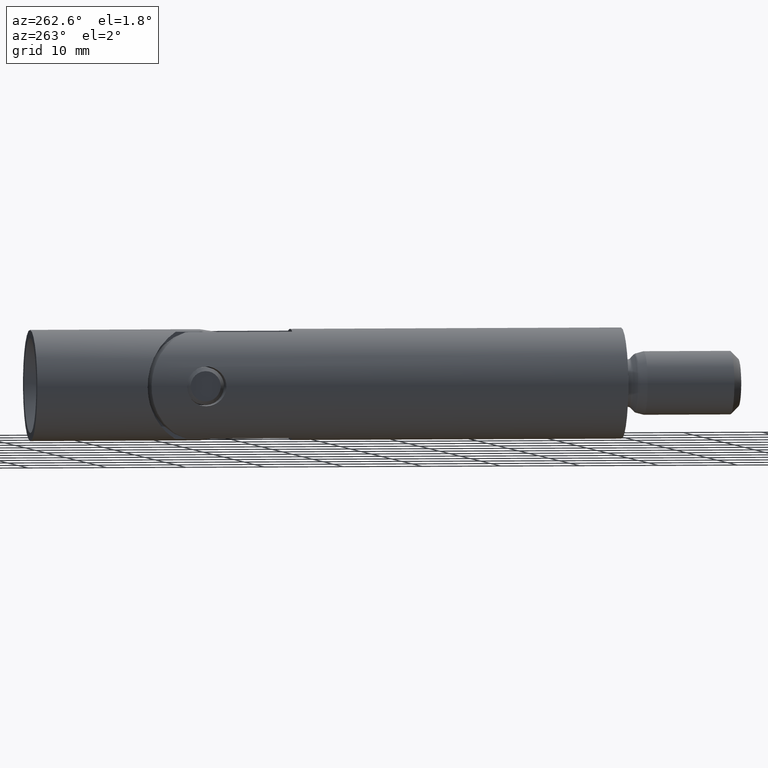
[diagram: clean part render]
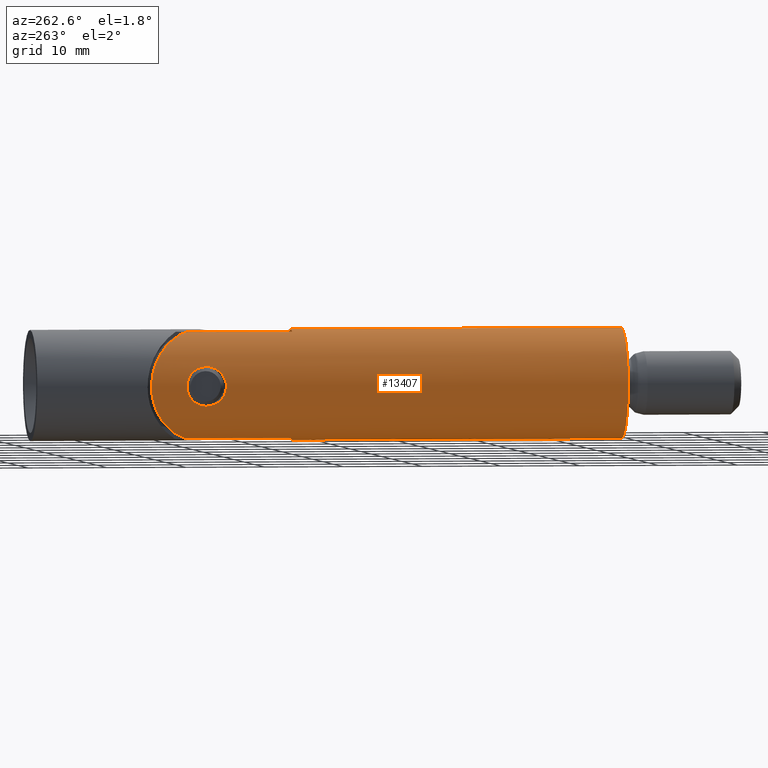
[diagram: same view with one face highlighted and labeled with its STEP entity id]
A machine part, auxiliary view. The second image highlights one B-rep face of the part: STEP entity #13407.
In plain terms, the highlighted cylindrical surface (partial cylindrical patch) has radius 7 mm, axis along (-0, -1, -0).
Its self-contained STEP definition (entity closure, byte-faithful):
#37 = CARTESIAN_POINT ( 'NONE',  ( -6.999981549145927900, 51.00005166239355200, 0.1674526206206270500 ) ) ;
#333 = CARTESIAN_POINT ( 'NONE',  ( -6.999996387244858700, 55.99998988428559000, 0.1642523234070799600 ) ) ;
#385 = FACE_OUTER_BOUND ( 'NONE', #16804, .T. ) ;
#413 = ORIENTED_EDGE ( 'NONE', *, *, #15931, .F. ) ;
#550 = CARTESIAN_POINT ( 'NONE',  ( 0.0000000000000000000, 0.0000000000000000000, -6.999999999999990200 ) ) ;
#810 = ORIENTED_EDGE ( 'NONE', *, *, #13696, .F. ) ;
#838 = DIRECTION ( 'NONE',  ( -0.0000000000000000000, 1.000000000000000000, -0.0000000000000000000 ) ) ;
#939 = DIRECTION ( 'NONE',  ( 0.0000000000000000000, 0.0000000000000000000, -1.000000000000000000 ) ) ;
#1232 = DIRECTION ( 'NONE',  ( -0.0000000000000000000, 1.000000000000000000, -0.0000000000000000000 ) ) ;
#1303 = CARTESIAN_POINT ( 'NONE',  ( -10.18181818181818900, 63.68181818181818700, 4.268857047954154100 ) ) ;
#1530 = CARTESIAN_POINT ( 'NONE',  ( -6.586688630397272700, 52.68972863383667300, 2.370635640661694000 ) ) ;
#1587 = CARTESIAN_POINT ( 'NONE',  ( -6.538348415311011400, 53.50000000000000000, 2.499999999999995100 ) ) ;
#1647 = CARTESIAN_POINT ( 'NONE',  ( -6.544575533785347500, 53.17216822282912100, 2.483892020798989200 ) ) ;
#1649 = CARTESIAN_POINT ( 'NONE',  ( -6.713002675042697700, 55.02700317868689000, 1.986084006136933400 ) ) ;
#1706 = CARTESIAN_POINT ( 'NONE',  ( -6.971294840662165100, 55.91865224520973500, -0.6537964533232153400 ) ) ;
#1764 = CARTESIAN_POINT ( 'NONE',  ( -6.586518606151291700, 54.30913794024783700, -2.371125453064278700 ) ) ;
#1781 = B_SPLINE_CURVE_WITH_KNOTS ( 'NONE', 3,
 ( #1587, #11535, #15492, #15679, #16827, #14113, #11275, #1649, #11338, #15620, #2958, #15559, #12675, #10026, #8546, #16879, #333, #12738, #4357, #1706, #14050, #4554, #3075, #12795, #4423, #15429, #14174, #5874, #14239, #1764, #11471, #5934, #8722, #6117 ),
 .UNSPECIFIED., .F., .F.,
 ( 4, 2, 2, 2, 2, 2, 2, 2, 2, 2, 2, 2, 2, 2, 2, 2, 4 ),
 ( 0.003942211181207910800, 0.004434638290087006800, 0.004927065398966103600, 0.005419492507845199600, 0.005911919616724296500, 0.006404346725603392500, 0.006896773834482488500, 0.007389200943361585300, 0.007881628052240682200, 0.008374055161119777300, 0.008866482269998874100, 0.009358909378877969300, 0.009851336487757066100, 0.01034376359663616300, 0.01083619070551526000, 0.01132861781439435700, 0.01182104492327345200 ),
 .UNSPECIFIED. ) ;
#2360 = DIRECTION ( 'NONE',  ( -0.0000000000000000000, -1.000000000000000000, -0.0000000000000000000 ) ) ;
#2468 = CARTESIAN_POINT ( 'NONE',  ( 0.0000000000000000000, 0.0000000000000000000, 0.0000000000000000000 ) ) ;
#2509 = VECTOR ( 'NONE', #12768, 1000.000000000000000 ) ;
#2534 = FACE_BOUND ( 'NONE', #13067, .T. ) ;
#2556 = CARTESIAN_POINT ( 'NONE',  ( -6.971571512549625800, 51.08055564289905700, -0.6504312643657497200 ) ) ;
#2687 = VERTEX_POINT ( 'NONE', #8346 ) ;
#2792 = VECTOR ( 'NONE', #16925, 1000.000000000000000 ) ;
#2866 = CARTESIAN_POINT ( 'NONE',  ( 8.572527594031473200E-016, 42.00000000000000000, 7.000000000000000000 ) ) ;
#2922 = LINE ( 'NONE', #7304, #2509 ) ;
#2958 = CARTESIAN_POINT ( 'NONE',  ( -6.832805419113036300, 55.48611954710165200, 1.527007493720685000 ) ) ;
#3075 = CARTESIAN_POINT ( 'NONE',  ( -6.887378446017280900, 55.66642792132731200, -1.258145585093684200 ) ) ;
#3120 = VERTEX_POINT ( 'NONE', #13404 ) ;
#3418 = VERTEX_POINT ( 'NONE', #12046 ) ;
#3949 = CARTESIAN_POINT ( 'NONE',  ( -7.000018365474412400, 50.99994857666950300, -0.1659064542357323000 ) ) ;
#4314 = LINE ( 'NONE', #7255, #2792 ) ;
#4355 = CARTESIAN_POINT ( 'NONE',  ( -6.832544973003120200, 51.51476360543982500, 1.528204561839529000 ) ) ;
#4357 = CARTESIAN_POINT ( 'NONE',  ( -6.994122310226764200, 55.98368150498951900, -0.3296280743643768000 ) ) ;
#4423 = CARTESIAN_POINT ( 'NONE',  ( -6.803124002926328000, 55.38280020444108200, -1.652799647992187800 ) ) ;
#4518 = DIRECTION ( 'NONE',  ( -0.0000000000000000000, -1.000000000000000000, -0.0000000000000000000 ) ) ;
#4554 = CARTESIAN_POINT ( 'NONE',  ( -6.912779065170286500, 55.74500075489552100, -1.112074036893765800 ) ) ;
#4621 = DIRECTION ( 'NONE',  ( 0.0000000000000000000, 0.0000000000000000000, -1.000000000000000000 ) ) ;
#5052 = ORIENTED_EDGE ( 'NONE', *, *, #13643, .F. ) ;
#5289 = ORIENTED_EDGE ( 'NONE', *, *, #16894, .F. ) ;
#5342 = CARTESIAN_POINT ( 'NONE',  ( -6.994022526692882400, 51.01660247365821000, 0.3310844715906743300 ) ) ;
#5402 = CARTESIAN_POINT ( 'NONE',  ( -6.713293999746591500, 51.97163285381493100, -1.985134064349435500 ) ) ;
#5457 = CARTESIAN_POINT ( 'NONE',  ( -6.743219394607996800, 51.84674472924676500, -1.882294192319467400 ) ) ;
#5500 = AXIS2_PLACEMENT_3D ( 'NONE', #6243, #838, #6493 ) ;
#5562 = LINE ( 'NONE', #7286, #12721 ) ;
#5755 = EDGE_CURVE ( 'NONE', #8587, #17506, #16950, .T. ) ;
#5874 = CARTESIAN_POINT ( 'NONE',  ( -6.656795899600603600, 54.75706456936632100, -2.167015869289592400 ) ) ;
#5934 = CARTESIAN_POINT ( 'NONE',  ( -6.544807042027982500, 53.83188661988361900, -2.483281656932707200 ) ) ;
#5952 = DIRECTION ( 'NONE',  ( -0.0000000000000000000, -1.000000000000000000, -0.0000000000000000000 ) ) ;
#6117 = CARTESIAN_POINT ( 'NONE',  ( -6.538348415311013200, 53.50000000000000000, -2.499999999999995100 ) ) ;
#6243 = CARTESIAN_POINT ( 'NONE',  ( 0.0000000000000000000, 42.00000000000000000, 0.0000000000000000000 ) ) ;
#6493 = DIRECTION ( 'NONE',  ( 5.329070518200751400E-015, 0.0000000000000000000, -1.000000000000000000 ) ) ;
#6748 = CARTESIAN_POINT ( 'NONE',  ( -6.954400564734760000, 51.12993094226396800, 0.8121497463733119400 ) ) ;
#6808 = VERTEX_POINT ( 'NONE', #9354 ) ;
#6871 = CARTESIAN_POINT ( 'NONE',  ( -6.887514385660947100, 51.33312502740408000, 1.257467923348688300 ) ) ;
#7034 = CARTESIAN_POINT ( 'NONE',  ( -6.652159368933355100, 52.23924048218312800, 2.183185184228069600 ) ) ;
#7255 = CARTESIAN_POINT ( 'NONE',  ( -1.999999999999989600, 0.0000000000000000000, -6.708203932499372100 ) ) ;
#7286 = CARTESIAN_POINT ( 'NONE',  ( 8.572527594031473200E-016, 0.0000000000000000000, 7.000000000000000000 ) ) ;
#7304 = CARTESIAN_POINT ( 'NONE',  ( 0.0000000000000000000, 0.0000000000000000000, -7.000000000000000000 ) ) ;
#7409 = CARTESIAN_POINT ( 'NONE',  ( -1.999999999999989600, 0.0000000000000000000, 6.708203932499372100 ) ) ;
#7430 = ORIENTED_EDGE ( 'NONE', *, *, #17597, .T. ) ;
#7554 = B_SPLINE_CURVE_WITH_KNOTS ( 'NONE', 3,
 ( #8073, #13699, #17795, #12334, #17736, #9467, #8188, #5402, #5457, #11035, #15080, #17849, #17905, #12454, #2556, #15136, #3949, #37, #5342, #15021, #6748, #8131, #6871, #4355, #14170, #11272, #7034, #1530, #16824, #1647, #16874, #11149 ),
 .UNSPECIFIED., .F., .F.,
 ( 4, 2, 2, 2, 2, 2, 2, 2, 2, 2, 2, 2, 2, 2, 2, 4 ),
 ( 0.01182104492327345200, 0.01231372611010778500, 0.01280640729694211600, 0.01329908848377644800, 0.01379176967061077900, 0.01428445085744511200, 0.01477713204427944300, 0.01526981323111377600, 0.01576249441794810900, 0.01625517560478244000, 0.01674785679161677100, 0.01724053797845110500, 0.01773321916528543600, 0.01871858153895409800, 0.01921126272578842900, 0.01970394391262276000 ),
 .UNSPECIFIED. ) ;
#7718 = VECTOR ( 'NONE', #4518, 1000.000000000000000 ) ;
#7755 = ORIENTED_EDGE ( 'NONE', *, *, #8479, .F. ) ;
#8073 = CARTESIAN_POINT ( 'NONE',  ( -6.538348415311013200, 53.50000000000000000, -2.499999999999995100 ) ) ;
#8095 = ORIENTED_EDGE ( 'NONE', *, *, #11764, .F. ) ;
#8131 = CARTESIAN_POINT ( 'NONE',  ( -6.912413640948227700, 51.25611888300166200, 1.114366224250469300 ) ) ;
#8188 = CARTESIAN_POINT ( 'NONE',  ( -6.656791156367127400, 52.24283719988540800, -2.167072929318828200 ) ) ;
#8346 = CARTESIAN_POINT ( 'NONE',  ( 8.572527594031461400E-016, 0.0000000000000000000, 6.999999999999990200 ) ) ;
#8479 = EDGE_CURVE ( 'NONE', #10319, #3120, #9342, .T. ) ;
#8546 = CARTESIAN_POINT ( 'NONE',  ( -6.971277688676971200, 55.91860301743767500, 0.6539880238683722900 ) ) ;
#8587 = VERTEX_POINT ( 'NONE', #11851 ) ;
#8722 = CARTESIAN_POINT ( 'NONE',  ( -6.538348415311013200, 53.66472099412074900, -2.499999999999995100 ) ) ;
#9025 = DIRECTION ( 'NONE',  ( -0.0000000000000000000, -1.000000000000000000, -0.0000000000000000000 ) ) ;
#9321 = DIRECTION ( 'NONE',  ( 0.0000000000000000000, 0.0000000000000000000, -1.000000000000000000 ) ) ;
#9342 = CIRCLE ( 'NONE', #11459, 7.000000000000000000 ) ;
#9354 = CARTESIAN_POINT ( 'NONE',  ( -6.538348415311013200, 53.50000000000000000, -2.499999999999995100 ) ) ;
#9467 = CARTESIAN_POINT ( 'NONE',  ( -6.630565988376040400, 52.38798107305262200, -2.244996194563281000 ) ) ;
#9877 = CIRCLE ( 'NONE', #11115, 7.000000000000000000 ) ;
#10026 = CARTESIAN_POINT ( 'NONE',  ( -6.954627560028416900, 55.87072283063486800, 0.8100657434184330700 ) ) ;
#10319 = VERTEX_POINT ( 'NONE', #13300 ) ;
#10325 = CARTESIAN_POINT ( 'NONE',  ( 0.0000000000000000000, 0.0000000000000000000, 0.0000000000000000000 ) ) ;
#10615 = ORIENTED_EDGE ( 'NONE', *, *, #5755, .F. ) ;
#10904 = EDGE_CURVE ( 'NONE', #6808, #3418, #7554, .T. ) ;
#11035 = CARTESIAN_POINT ( 'NONE',  ( -6.803060434179653400, 51.61748135266697800, -1.652999685165231500 ) ) ;
#11115 = AXIS2_PLACEMENT_3D ( 'NONE', #10325, #9025, #939 ) ;
#11149 = CARTESIAN_POINT ( 'NONE',  ( -6.538348415311011400, 53.50000000000000000, 2.499999999999995100 ) ) ;
#11272 = CARTESIAN_POINT ( 'NONE',  ( -6.713011081320541300, 51.96268946594810200, 1.997803583214680300 ) ) ;
#11275 = CARTESIAN_POINT ( 'NONE',  ( -6.656927509154721500, 54.75778283289697900, 2.166621963431197600 ) ) ;
#11338 = CARTESIAN_POINT ( 'NONE',  ( -6.743439541038619600, 55.15415760848125600, 1.881518315420023500 ) ) ;
#11459 = AXIS2_PLACEMENT_3D ( 'NONE', #14310, #1232, #4621 ) ;
#11471 = CARTESIAN_POINT ( 'NONE',  ( -6.568934039161713500, 54.15310330112174600, -2.418737810135711100 ) ) ;
#11535 = CARTESIAN_POINT ( 'NONE',  ( -6.538348415311010500, 53.66456764569719700, 2.499999999999995100 ) ) ;
#11612 = VERTEX_POINT ( 'NONE', #12045 ) ;
#11764 = EDGE_CURVE ( 'NONE', #11612, #16727, #15409, .T. ) ;
#11851 = CARTESIAN_POINT ( 'NONE',  ( -1.999999999999996700, 42.00000000000000000, 6.708203932499372100 ) ) ;
#12045 = CARTESIAN_POINT ( 'NONE',  ( -1.999999999999998200, 55.49999999999998600, -6.708203932499372100 ) ) ;
#12046 = CARTESIAN_POINT ( 'NONE',  ( -6.538348415311011400, 53.50000000000000000, 2.499999999999995100 ) ) ;
#12301 = LINE ( 'NONE', #7409, #7718 ) ;
#12334 = CARTESIAN_POINT ( 'NONE',  ( -6.568809559002835900, 52.84780813729159400, -2.419077700821992100 ) ) ;
#12433 = EDGE_CURVE ( 'NONE', #16727, #8587, #12301, .T. ) ;
#12454 = CARTESIAN_POINT ( 'NONE',  ( -6.954720590168832000, 51.12899170621091100, -0.8094894015410861700 ) ) ;
#12675 = CARTESIAN_POINT ( 'NONE',  ( -6.912964217126407200, 55.74556373952215400, 1.110845056745870800 ) ) ;
#12721 = VECTOR ( 'NONE', #5952, 1000.000000000000000 ) ;
#12738 = CARTESIAN_POINT ( 'NONE',  ( -7.000003609365456300, 56.00001010622327900, -0.1639442467923007400 ) ) ;
#12768 = DIRECTION ( 'NONE',  ( -0.0000000000000000000, -1.000000000000000000, -0.0000000000000000000 ) ) ;
#12795 = CARTESIAN_POINT ( 'NONE',  ( -6.832648139262723000, 55.48557514957593600, -1.527688311464025600 ) ) ;
#13067 = EDGE_LOOP ( 'NONE', ( #17831, #5052 ) ) ;
#13300 = CARTESIAN_POINT ( 'NONE',  ( 0.0000000000000000000, 42.00000000000000000, -7.000000000000000000 ) ) ;
#13404 = CARTESIAN_POINT ( 'NONE',  ( -1.999999999999996700, 42.00000000000000000, -6.708203932499372100 ) ) ;
#13407 = ADVANCED_FACE ( 'NONE', ( #385, #2534 ), #16816, .T. ) ;
#13529 = CARTESIAN_POINT ( 'NONE',  ( -1.999999999999998200, 55.49999999999998600, -6.708203932499372100 ) ) ;
#13643 = EDGE_CURVE ( 'NONE', #3418, #6808, #1781, .T. ) ;
#13696 = EDGE_CURVE ( 'NONE', #2687, #17735, #9877, .T. ) ;
#13699 = CARTESIAN_POINT ( 'NONE',  ( -6.538348415311010500, 53.33519401467422900, -2.499999999999995600 ) ) ;
#13736 = ORIENTED_EDGE ( 'NONE', *, *, #12433, .F. ) ;
#13811 = CARTESIAN_POINT ( 'NONE',  ( -1.999999999999998200, 55.49999999999998600, 6.708203932499372100 ) ) ;
#13914 = CARTESIAN_POINT ( 'NONE',  ( -1.999999999999998200, 55.49999999999998600, 6.708203932499372100 ) ) ;
#14050 = CARTESIAN_POINT ( 'NONE',  ( -6.954626818691521900, 55.87072735102293600, -0.8101783014413821400 ) ) ;
#14113 = CARTESIAN_POINT ( 'NONE',  ( -6.630891678195562000, 54.61417307946677400, 2.244056500775113900 ) ) ;
#14170 = CARTESIAN_POINT ( 'NONE',  ( -6.802524204305409900, 51.61943172811923100, 1.655173309233356300 ) ) ;
#14174 = CARTESIAN_POINT ( 'NONE',  ( -6.712745980858543700, 55.02585657456696600, -1.986940065316468800 ) ) ;
#14239 = CARTESIAN_POINT ( 'NONE',  ( -6.630574512559651800, 54.61220286988348200, -2.244982159559570700 ) ) ;
#14310 = CARTESIAN_POINT ( 'NONE',  ( 0.0000000000000000000, 42.00000000000000000, 0.0000000000000000000 ) ) ;
#14911 = CARTESIAN_POINT ( 'NONE',  ( -10.18181818181818900, 63.68181818181818700, -4.268857047954149700 ) ) ;
#15021 = CARTESIAN_POINT ( 'NONE',  ( -6.971377729647519700, 51.08111190432909200, 0.6525799428350248500 ) ) ;
#15080 = CARTESIAN_POINT ( 'NONE',  ( -6.833173121554277300, 51.51262594313612200, -1.525347122019578200 ) ) ;
#15136 = CARTESIAN_POINT ( 'NONE',  ( -6.994088657715217900, 51.01641835356782900, -0.3295360864567885600 ) ) ;
#15409 =( BOUNDED_CURVE ( )  B_SPLINE_CURVE ( 3, ( #13529, #14911, #1303, #13811 ),
 .UNSPECIFIED., .F., .F. ) 
 B_SPLINE_CURVE_WITH_KNOTS ( ( 4, 4 ),
 ( 1.860548028230943200, 4.422637278948643700 ),
 .UNSPECIFIED. ) 
 CURVE ( )  GEOMETRIC_REPRESENTATION_ITEM ( )  RATIONAL_B_SPLINE_CURVE ( ( 1.000000000000000000, 0.5238095238095231700, 0.5238095238095231700, 1.000000000000000000 ) ) 
 REPRESENTATION_ITEM ( '' )  );
#15429 = CARTESIAN_POINT ( 'NONE',  ( -6.742829180491086500, 55.15172206134482700, -1.883745608704459100 ) ) ;
#15492 = CARTESIAN_POINT ( 'NONE',  ( -6.544791159009323100, 53.83169226628663000, 2.483324305821228400 ) ) ;
#15559 = CARTESIAN_POINT ( 'NONE',  ( -6.887599654653779000, 55.66713404354822400, 1.256961725174131400 ) ) ;
#15620 = CARTESIAN_POINT ( 'NONE',  ( -6.803351252801216600, 55.38357341748209000, 1.651817104255875800 ) ) ;
#15679 = CARTESIAN_POINT ( 'NONE',  ( -6.568957836385555600, 54.15340301551106000, 2.418673989341653600 ) ) ;
#15754 = AXIS2_PLACEMENT_3D ( 'NONE', #2468, #2360, #9321 ) ;
#15931 = EDGE_CURVE ( 'NONE', #17506, #2687, #5562, .T. ) ;
#16727 = VERTEX_POINT ( 'NONE', #13914 ) ;
#16804 = EDGE_LOOP ( 'NONE', ( #413, #10615, #13736, #8095, #5289, #7755, #7430, #810 ) ) ;
#16816 = CYLINDRICAL_SURFACE ( 'NONE', #15754, 7.000000000000000000 ) ;
#16824 = CARTESIAN_POINT ( 'NONE',  ( -6.568723425847320400, 52.84874567028187900, 2.419310034521269700 ) ) ;
#16827 = CARTESIAN_POINT ( 'NONE',  ( -6.586596810368878800, 54.30988563723948200, 2.370918911365954800 ) ) ;
#16874 = CARTESIAN_POINT ( 'NONE',  ( -6.538348415311015000, 53.33534744222108500, 2.499999999999995600 ) ) ;
#16879 = CARTESIAN_POINT ( 'NONE',  ( -6.994117365896198800, 55.98366778600602300, 0.3297502389351648100 ) ) ;
#16894 = EDGE_CURVE ( 'NONE', #3120, #11612, #4314, .T. ) ;
#16925 = DIRECTION ( 'NONE',  ( 0.0000000000000000000, 1.000000000000000000, 0.0000000000000000000 ) ) ;
#16950 = CIRCLE ( 'NONE', #5500, 7.000000000000000000 ) ;
#17506 = VERTEX_POINT ( 'NONE', #2866 ) ;
#17597 = EDGE_CURVE ( 'NONE', #10319, #17735, #2922, .T. ) ;
#17735 = VERTEX_POINT ( 'NONE', #550 ) ;
#17736 = CARTESIAN_POINT ( 'NONE',  ( -6.586764103214064500, 52.68904863335127000, -2.370432848326097900 ) ) ;
#17795 = CARTESIAN_POINT ( 'NONE',  ( -6.544587326596993800, 53.17179506586583000, -2.483862449816269400 ) ) ;
#17831 = ORIENTED_EDGE ( 'NONE', *, *, #10904, .F. ) ;
#17849 = CARTESIAN_POINT ( 'NONE',  ( -6.887845714430061300, 51.33209333260025200, -1.255595542359350300 ) ) ;
#17905 = CARTESIAN_POINT ( 'NONE',  ( -6.912706709443594600, 51.25521584719491100, -1.112608434148860900 ) ) ;